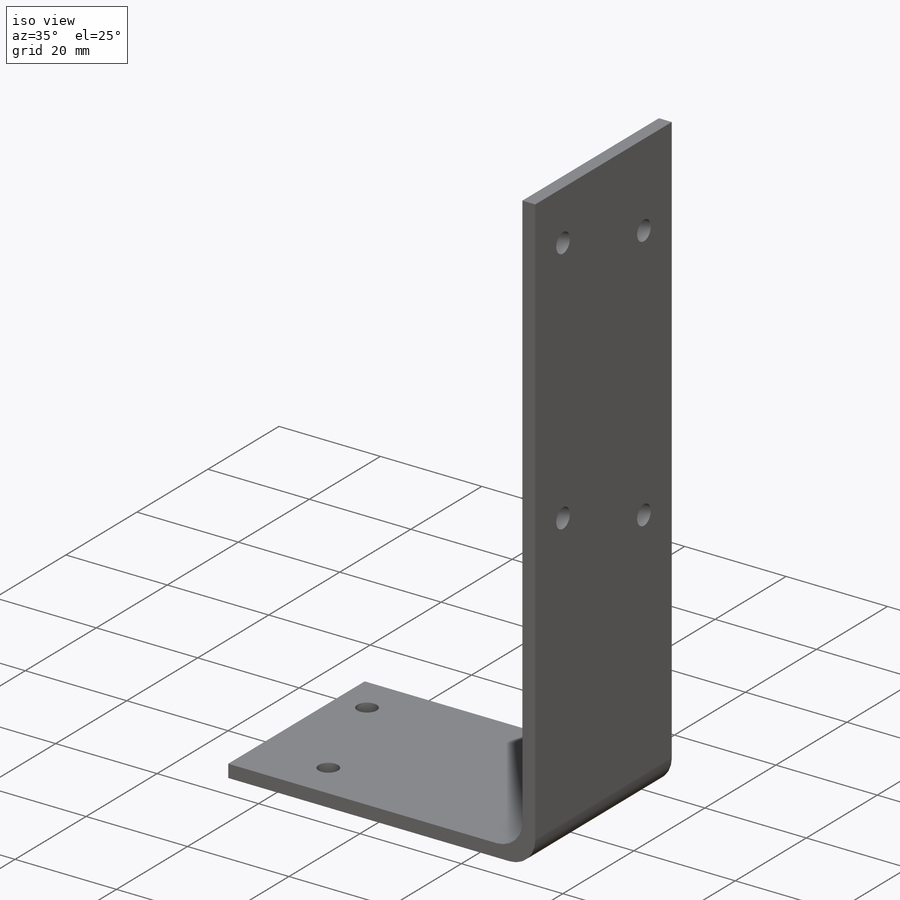
[diagram: iso view]
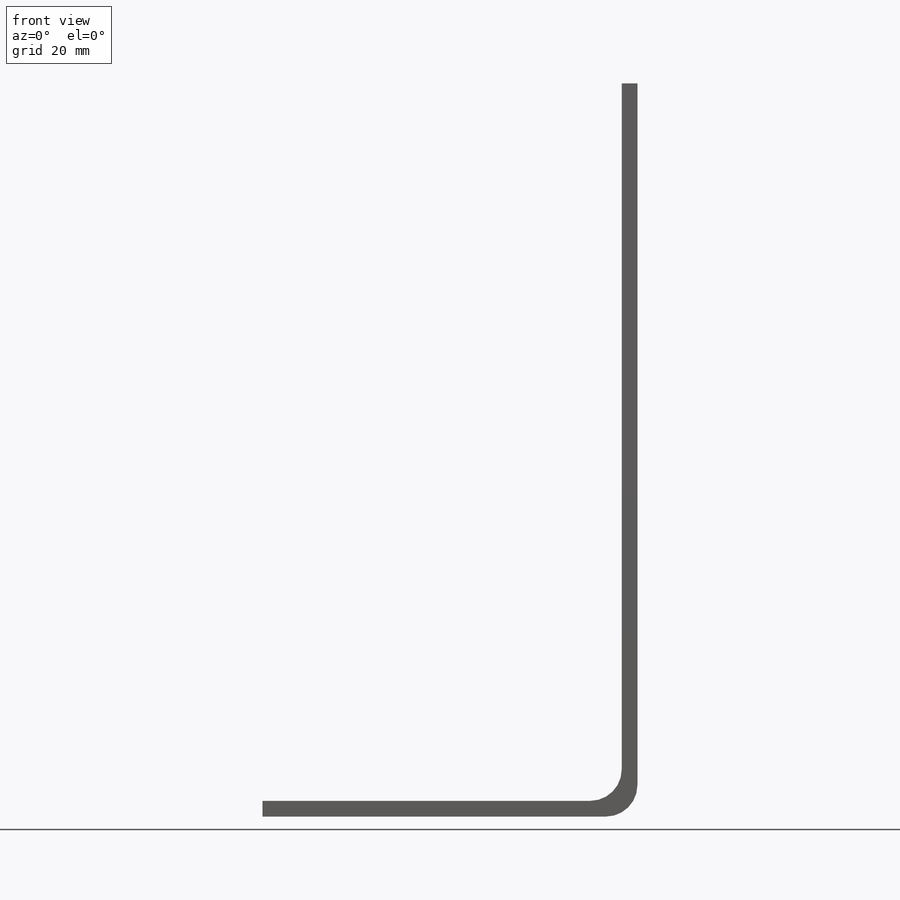
[diagram: front view]
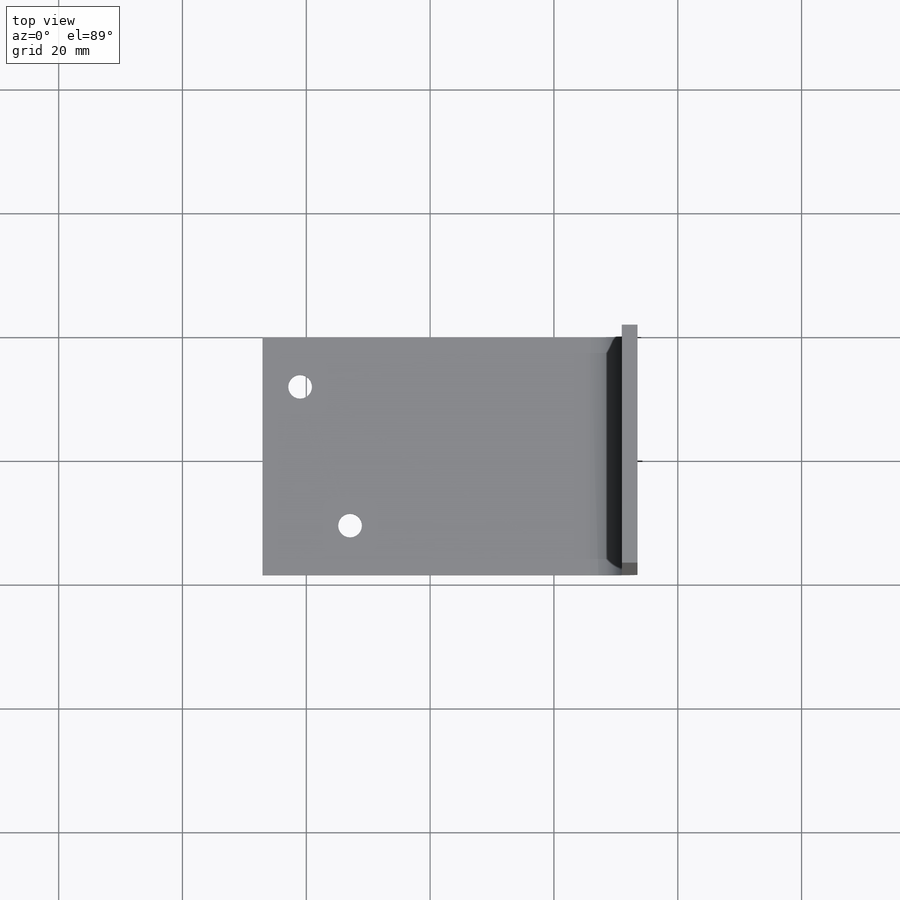
[diagram: top view]
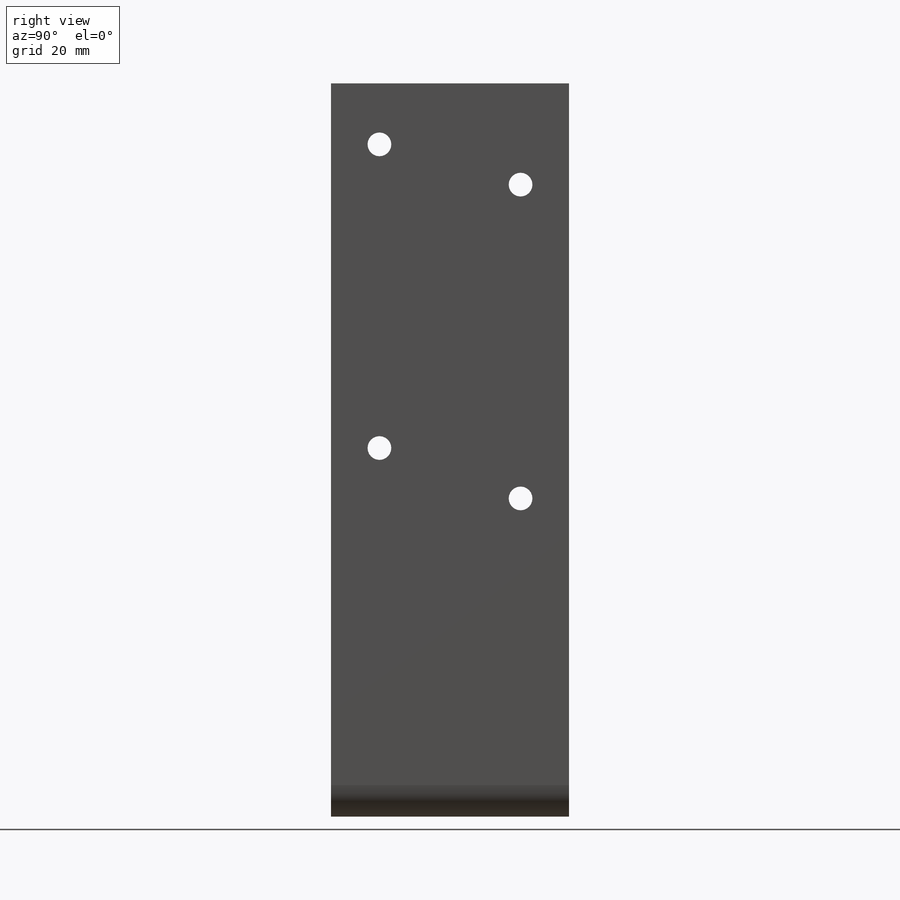
[diagram: right view]
SOLIDWORKS PART (.sldprt)
format: sldprt  version: not decoded by parser v0  size: 206,336 bytes
history: native  units: mm
features: sketch x5, cut_extrude x3, material x1, extrude x1, fillet x1, plane x1 (+11 scaffold rows collapsed)
feature tree (23):
  scaffold x11  (default folders/planes/origin — collapsed)
  material  "Material <not specified>"
  sketch  "Sketch1"  dims[D1=2.54mm D2=113.4872mm D3=118.4148mm]
  extrude  "Boss-Extrude1"  Depth=38.4429mm
  sketch  "Sketch2"  dims[D2=3.8354mm D1=8.0137mm D3=46.4185mm D4=54.483mm D5=97.282mm D6=103.6066mm]
  cut_extrude  "Cut-Extrude1"  [1 undecoded]
  sketch  "Sketch3"  dims[D3=3.8354mm D1=4.9657mm D2=7.8232mm D4=46.4185mm D5=54.5592mm D6=97.1042mm D7=103.6066mm]
  cut_extrude  "Cut-Extrude2"  [1 undecoded]
  fillet  "Fillet1"  Radius=5.08mm
  sketch  "Sketch4"
  cut_extrude  "Cut-Extrude4"  [1 undecoded]
  sketch  "Sketch5"
  plane  "Center plane"
decode coverage: 5 of 10 modeling features carry decoded parameters
note: 3 parameter values undecoded
summary: no parameter record found for 3 features
note: suppression state not decoded; provenance and decode notes live in map.json
